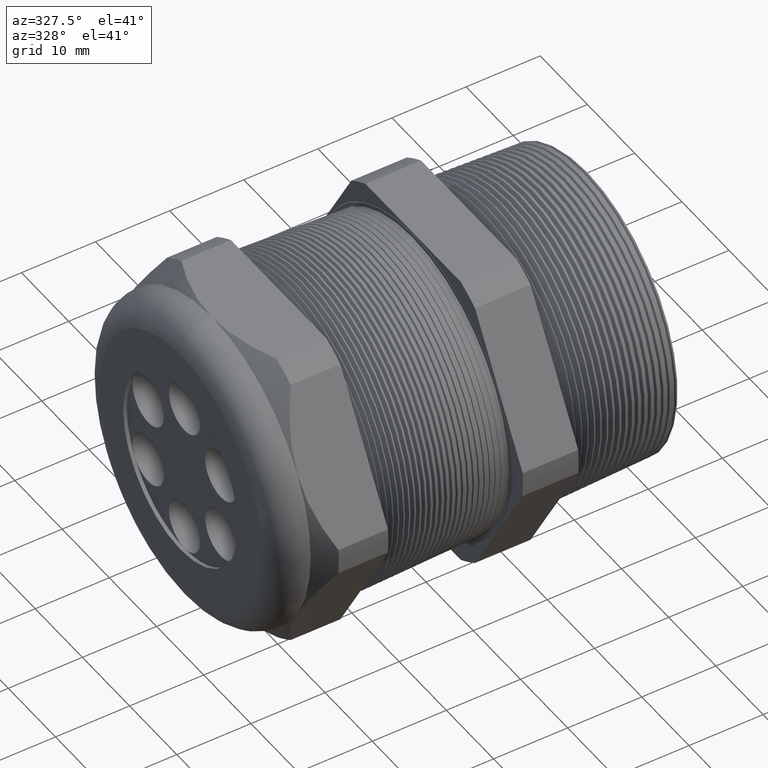
[diagram: clean part render]
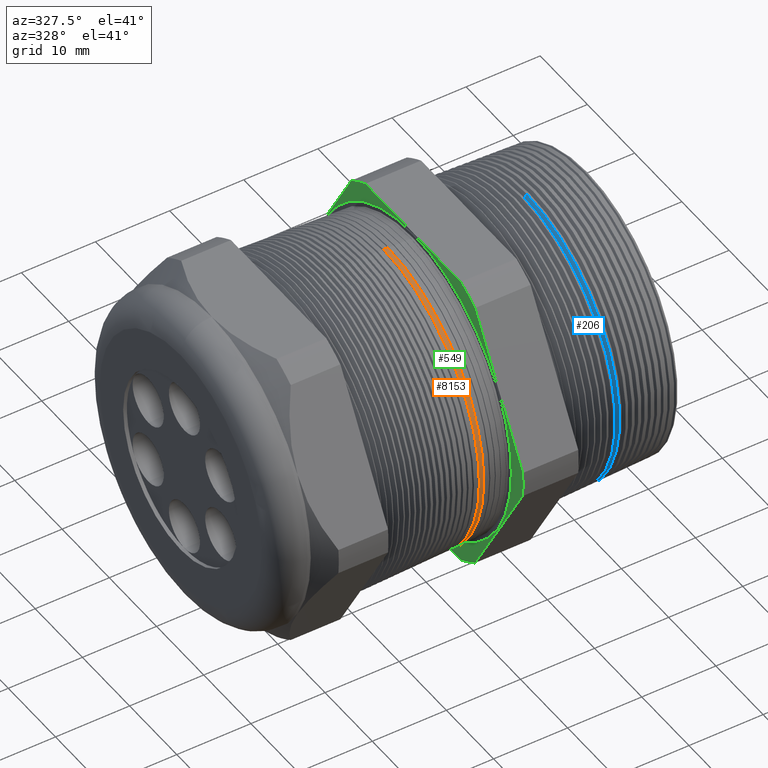
[diagram: same view with three faces highlighted in distinct colors, each labeled with its STEP entity id]
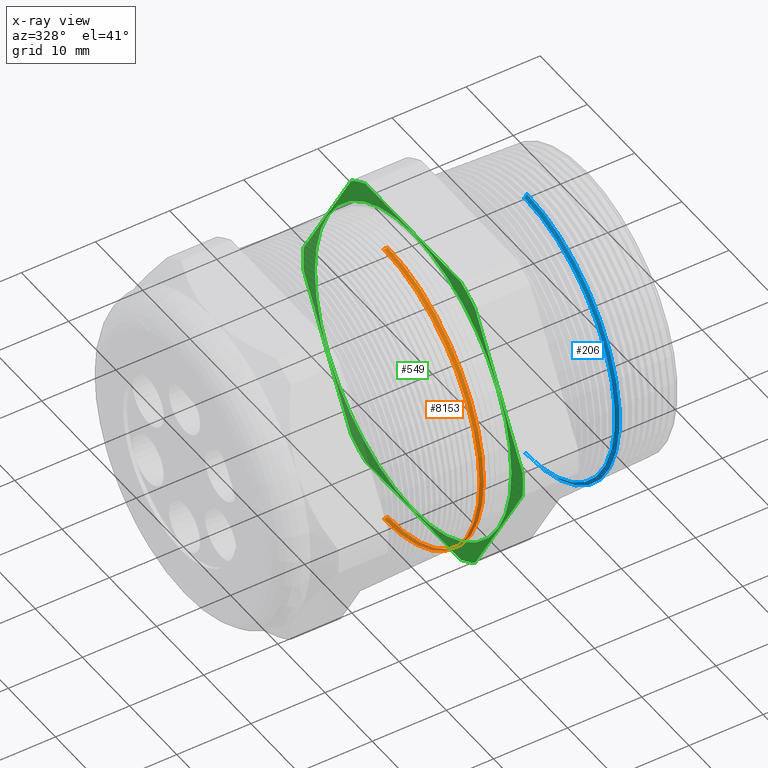
[diagram: x-ray of the same camera — body ghosted, the three highlighted faces saturated]
A machine part, auxiliary view with three faces highlighted in distinct colors.
The next image is the same camera in x-ray (body ghosted, the three faces saturated) — at least one of them is partly hidden behind the body in this view.
Their STEP definitions:

[orange] entity #8153 — the highlighted conical surface has half-angle 2 deg.
#5048 = DIRECTION ( 'NONE',  ( -0.9993908270190959800, 4.273955692856244300E-018, -0.03489949670249364200 ) ) ;
#5049 = VECTOR ( 'NONE', #5048, 39.37007874015748100 ) ;
#5050 = CARTESIAN_POINT ( 'NONE',  ( -0.6052755905511809600, 9.736312814794494100E-017, -0.7950302749799610400 ) ) ;
#5055 = LINE ( 'NONE', #5050, #5049 ) ;
#5058 = DIRECTION ( 'NONE',  ( -0.9993908270190959800, 0.0000000000000000000, 0.03489949670249364200 ) ) ;
#5059 = VECTOR ( 'NONE', #5058, 39.37007874015748100 ) ;
#5060 = CARTESIAN_POINT ( 'NONE',  ( -0.6052755905511809600, 0.0000000000000000000, 0.7950302749799610400 ) ) ;
#5061 = LINE ( 'NONE', #5060, #5059 ) ;
#6092 = CARTESIAN_POINT ( 'NONE',  ( -0.7395311394211149200, 0.0000000000000000000, 0.7997185820550352100 ) ) ;
#6127 = CARTESIAN_POINT ( 'NONE',  ( -0.7395311394211149200, 9.798745611578774700E-017, -0.7997185820550352100 ) ) ;
#6465 = CARTESIAN_POINT ( 'NONE',  ( -0.7629966970108607000, 9.803763205833960100E-017, -0.8005380173826217600 ) ) ;
#6470 = CARTESIAN_POINT ( 'NONE',  ( -0.7629966970108607000, 0.0000000000000000000, 0.8005380173826217600 ) ) ;
#6536 = DIRECTION ( 'NONE',  ( 0.0000000000000000000, 0.0000000000000000000, 1.000000000000000000 ) ) ;
#6537 = DIRECTION ( 'NONE',  ( 1.000000000000000000, 0.0000000000000000000, 0.0000000000000000000 ) ) ;
#6538 = CARTESIAN_POINT ( 'NONE',  ( -0.7395311394211149200, 0.0000000000000000000, 0.0000000000000000000 ) ) ;
#6539 = AXIS2_PLACEMENT_3D ( 'NONE', #6538, #6537, #6536 ) ;
#6540 = CIRCLE ( 'NONE', #6539, 0.7997185820550352100 ) ;
#6561 = DIRECTION ( 'NONE',  ( 0.0000000000000000000, 0.0000000000000000000, 1.000000000000000000 ) ) ;
#6562 = DIRECTION ( 'NONE',  ( -1.000000000000000000, 0.0000000000000000000, 0.0000000000000000000 ) ) ;
#6563 = AXIS2_PLACEMENT_3D ( 'NONE', #6565, #6562, #6561 ) ;
#6564 = CONICAL_SURFACE ( 'NONE', #6563, 0.7950302749799610400, 0.03490658503987925700 ) ;
#6565 = CARTESIAN_POINT ( 'NONE',  ( -0.6052755905511809600, 0.0000000000000000000, 0.0000000000000000000 ) ) ;
#6566 = FACE_OUTER_BOUND ( 'NONE', #8138, .T. ) ;
#6804 = DIRECTION ( 'NONE',  ( 0.0000000000000000000, 0.0000000000000000000, -1.000000000000000000 ) ) ;
#6805 = DIRECTION ( 'NONE',  ( -1.000000000000000000, 0.0000000000000000000, 0.0000000000000000000 ) ) ;
#6806 = CARTESIAN_POINT ( 'NONE',  ( -0.7629966970108607000, 0.0000000000000000000, 0.0000000000000000000 ) ) ;
#6807 = AXIS2_PLACEMENT_3D ( 'NONE', #6806, #6805, #6804 ) ;
#6808 = CIRCLE ( 'NONE', #6807, 0.8005380173826217600 ) ;
#7333 = EDGE_CURVE ( 'NONE', #7911, #8105, #5061, .T. ) ;
#7338 = EDGE_CURVE ( 'NONE', #7924, #8109, #5055, .T. ) ;
#7911 = VERTEX_POINT ( 'NONE', #6092 ) ;
#7924 = VERTEX_POINT ( 'NONE', #6127 ) ;
#8105 = VERTEX_POINT ( 'NONE', #6470 ) ;
#8109 = VERTEX_POINT ( 'NONE', #6465 ) ;
#8133 = EDGE_CURVE ( 'NONE', #7911, #7924, #6540, .T. ) ;
#8134 = ORIENTED_EDGE ( 'NONE', *, *, #8133, .F. ) ;
#8136 = ORIENTED_EDGE ( 'NONE', *, *, #7338, .F. ) ;
#8138 = EDGE_LOOP ( 'NONE', ( #8136, #8134, #8305, #8306 ) ) ;
#8153 = ADVANCED_FACE ( 'NONE', ( #6566 ), #6564, .T. ) ;
#8303 = EDGE_CURVE ( 'NONE', #8109, #8105, #6808, .T. ) ;
#8305 = ORIENTED_EDGE ( 'NONE', *, *, #7333, .T. ) ;
#8306 = ORIENTED_EDGE ( 'NONE', *, *, #8303, .F. ) ;

[blue] entity #206 — the highlighted conical surface has half-angle 58 deg.
#125 = ORIENTED_EDGE ( 'NONE', *, *, #166, .T. ) ;
#126 = ORIENTED_EDGE ( 'NONE', *, *, #713, .T. ) ;
#166 = EDGE_CURVE ( 'NONE', #642, #639, #1899, .T. ) ;
#181 = EDGE_CURVE ( 'NONE', #637, #636, #1929, .T. ) ;
#207 = ORIENTED_EDGE ( 'NONE', *, *, #181, .T. ) ;
#206 = ADVANCED_FACE ( 'NONE', ( #1906 ), #1970, .T. ) ;
#208 = EDGE_LOOP ( 'NONE', ( #209, #207, #126, #125 ) ) ;
#209 = ORIENTED_EDGE ( 'NONE', *, *, #635, .F. ) ;
#635 = EDGE_CURVE ( 'NONE', #637, #639, #2783, .T. ) ;
#636 = VERTEX_POINT ( 'NONE', #2778 ) ;
#637 = VERTEX_POINT ( 'NONE', #2776 ) ;
#639 = VERTEX_POINT ( 'NONE', #2775 ) ;
#642 = VERTEX_POINT ( 'NONE', #2834 ) ;
#713 = EDGE_CURVE ( 'NONE', #636, #642, #2960, .T. ) ;
#1896 = DIRECTION ( 'NONE',  ( 0.0000000000000000000, 0.0000000000000000000, -1.000000000000000000 ) ) ;
#1897 = DIRECTION ( 'NONE',  ( -1.000000000000000000, 0.0000000000000000000, 0.0000000000000000000 ) ) ;
#1898 = AXIS2_PLACEMENT_3D ( 'NONE', #1903, #1897, #1896 ) ;
#1899 = CIRCLE ( 'NONE', #1898, 0.7739410592660150900 ) ;
#1903 = CARTESIAN_POINT ( 'NONE',  ( -0.001359467828458814000, 0.0000000000000000000, 0.0000000000000000000 ) ) ;
#1905 = CARTESIAN_POINT ( 'NONE',  ( -0.01373702801092110300, 0.0000000000000000000, 0.0000000000000000000 ) ) ;
#1906 = FACE_OUTER_BOUND ( 'NONE', #208, .T. ) ;
#1926 = DIRECTION ( 'NONE',  ( 0.0000000000000000000, 0.0000000000000000000, -1.000000000000000000 ) ) ;
#1927 = DIRECTION ( 'NONE',  ( 1.000000000000000000, 0.0000000000000000000, 0.0000000000000000000 ) ) ;
#1928 = AXIS2_PLACEMENT_3D ( 'NONE', #1934, #1927, #1926 ) ;
#1929 = CIRCLE ( 'NONE', #1928, 0.7541328223207396400 ) ;
#1934 = CARTESIAN_POINT ( 'NONE',  ( -0.01373702801092110300, 0.0000000000000000000, 0.0000000000000000000 ) ) ;
#1967 = DIRECTION ( 'NONE',  ( 0.0000000000000000000, 0.0000000000000000000, -1.000000000000000000 ) ) ;
#1968 = DIRECTION ( 'NONE',  ( 1.000000000000000000, 0.0000000000000000000, 0.0000000000000000000 ) ) ;
#1969 = AXIS2_PLACEMENT_3D ( 'NONE', #1905, #1968, #1967 ) ;
#1970 = CONICAL_SURFACE ( 'NONE', #1969, 0.7541328223207396400, 1.012290966156726300 ) ;
#2775 = CARTESIAN_POINT ( 'NONE',  ( -0.001359467828458814000, 0.0000000000000000000, 0.7739410592660150900 ) ) ;
#2776 = CARTESIAN_POINT ( 'NONE',  ( -0.01373702801092110300, 0.0000000000000000000, 0.7541328223207396400 ) ) ;
#2778 = CARTESIAN_POINT ( 'NONE',  ( -0.01373702801092110300, 9.361745374026719000E-017, -0.7541328223207396400 ) ) ;
#2779 = DIRECTION ( 'NONE',  ( 0.5299192642331921300, 1.038559386480983700E-016, 0.8480480961564338400 ) ) ;
#2781 = VECTOR ( 'NONE', #2779, 39.37007874015748100 ) ;
#2782 = CARTESIAN_POINT ( 'NONE',  ( -0.01373702801092110300, 9.235463469870535300E-017, 0.7541328223207396400 ) ) ;
#2783 = LINE ( 'NONE', #2782, #2781 ) ;
#2834 = CARTESIAN_POINT ( 'NONE',  ( -0.001359467828458814000, 9.478044409588372100E-017, -0.7739410592660150900 ) ) ;
#2957 = DIRECTION ( 'NONE',  ( 0.5299192642331921300, 0.0000000000000000000, -0.8480480961564338400 ) ) ;
#2958 = VECTOR ( 'NONE', #2957, 39.37007874015748100 ) ;
#2959 = CARTESIAN_POINT ( 'NONE',  ( -0.01373702801092110300, 0.0000000000000000000, -0.7541328223207396400 ) ) ;
#2960 = LINE ( 'NONE', #2959, #2958 ) ;

[green] entity #549 — the highlighted planar face has unit normal (-1, 0, 0).
#502 = VERTEX_POINT ( 'NONE', #2543 ) ;
#503 = VERTEX_POINT ( 'NONE', #2539 ) ;
#508 = EDGE_CURVE ( 'NONE', #521, #503, #2530, .T. ) ;
#521 = VERTEX_POINT ( 'NONE', #2564 ) ;
#523 = VERTEX_POINT ( 'NONE', #2557 ) ;
#524 = ORIENTED_EDGE ( 'NONE', *, *, #526, .T. ) ;
#525 = ORIENTED_EDGE ( 'NONE', *, *, #508, .T. ) ;
#526 = EDGE_CURVE ( 'NONE', #523, #521, #2556, .T. ) ;
#531 = VERTEX_POINT ( 'NONE', #2552 ) ;
#537 = EDGE_CURVE ( 'NONE', #531, #523, #2546, .T. ) ;
#539 = ORIENTED_EDGE ( 'NONE', *, *, #537, .T. ) ;
#549 = ADVANCED_FACE ( 'NONE', ( #2579, #2578 ), #2585, .T. ) ;
#2526 = DIRECTION ( 'NONE',  ( 0.0000000000000000000, 0.0000000000000000000, 1.000000000000000000 ) ) ;
#2527 = DIRECTION ( 'NONE',  ( -1.000000000000000000, 0.0000000000000000000, 0.0000000000000000000 ) ) ;
#2528 = CARTESIAN_POINT ( 'NONE',  ( -0.6052755905511810800, 0.0000000000000000000, 0.0000000000000000000 ) ) ;
#2529 = AXIS2_PLACEMENT_3D ( 'NONE', #2528, #2527, #2526 ) ;
#2530 = CIRCLE ( 'NONE', #2529, 0.9157500000000000600 ) ;
#2539 = CARTESIAN_POINT ( 'NONE',  ( -0.6052755905511810800, 0.3974582525247150100, -0.8249999999999999600 ) ) ;
#2543 = CARTESIAN_POINT ( 'NONE',  ( -0.6052755905511810800, -0.3974582525247148400, -0.8250000000000000700 ) ) ;
#2544 = CARTESIAN_POINT ( 'NONE',  ( -0.6052755905511810800, 0.0000000000000000000, 0.0000000000000000000 ) ) ;
#2545 = AXIS2_PLACEMENT_3D ( 'NONE', #2544, #2606, #2605 ) ;
#2546 = CIRCLE ( 'NONE', #2545, 0.9157499999999999500 ) ;
#2552 = CARTESIAN_POINT ( 'NONE',  ( -0.6052755905511810800, 0.9132000843845192700, 0.06829105636982647800 ) ) ;
#2553 = DIRECTION ( 'NONE',  ( 0.0000000000000000000, -0.4999999999999998300, -0.8660254037844386000 ) ) ;
#2554 = VECTOR ( 'NONE', #2553, 39.37007874015748900 ) ;
#2555 = CARTESIAN_POINT ( 'NONE',  ( -0.6052755905511809600, 1.126970958122162100, 0.3019709581221616800 ) ) ;
#2556 = LINE ( 'NONE', #2555, #2554 ) ;
#2557 = CARTESIAN_POINT ( 'NONE',  ( -0.6052755905511810800, 0.9132000843845193800, -0.06829105636982670000 ) ) ;
#2564 = CARTESIAN_POINT ( 'NONE',  ( -0.6052755905511809600, 0.5157418318598050400, -0.7567089436301733800 ) ) ;
#2574 = DIRECTION ( 'NONE',  ( 0.0000000000000000000, 0.0000000000000000000, 1.000000000000000000 ) ) ;
#2575 = DIRECTION ( 'NONE',  ( -1.000000000000000000, 0.0000000000000000000, 0.0000000000000000000 ) ) ;
#2576 = CARTESIAN_POINT ( 'NONE',  ( -0.6052755905511809600, 1.649999999999999900, 0.0000000000000000000 ) ) ;
#2577 = AXIS2_PLACEMENT_3D ( 'NONE', #2576, #2575, #2574 ) ;
#2578 = FACE_OUTER_BOUND ( 'NONE', #7430, .T. ) ;
#2579 = FACE_BOUND ( 'NONE', #8464, .T. ) ;
#2585 = PLANE ( 'NONE',  #2577 ) ;
#2605 = DIRECTION ( 'NONE',  ( 0.0000000000000000000, 0.0000000000000000000, 1.000000000000000000 ) ) ;
#2606 = DIRECTION ( 'NONE',  ( -1.000000000000000000, 0.0000000000000000000, 0.0000000000000000000 ) ) ;
#4877 = DIRECTION ( 'NONE',  ( 0.0000000000000000000, 0.0000000000000000000, 1.000000000000000000 ) ) ;
#5293 = CIRCLE ( 'NONE', #5294, 0.8191256059292615400 ) ;
#5294 = AXIS2_PLACEMENT_3D ( 'NONE', #5357, #5356, #5355 ) ;
#5299 = DIRECTION ( 'NONE',  ( 0.0000000000000000000, 0.4999999999999998300, -0.8660254037844386000 ) ) ;
#5300 = VECTOR ( 'NONE', #5299, 39.37007874015748900 ) ;
#5301 = CARTESIAN_POINT ( 'NONE',  ( -0.6052755905511809600, 1.126970958122161900, -0.3019709581221617400 ) ) ;
#5302 = LINE ( 'NONE', #5301, #5300 ) ;
#5303 = CARTESIAN_POINT ( 'NONE',  ( -0.6052755905511810800, 0.5157418318598044900, 0.7567089436301736000 ) ) ;
#5326 = CARTESIAN_POINT ( 'NONE',  ( -0.6052755905511810800, -0.5157418318598044900, 0.7567089436301736000 ) ) ;
#5327 = DIRECTION ( 'NONE',  ( 0.0000000000000000000, 0.0000000000000000000, 1.000000000000000000 ) ) ;
#5328 = DIRECTION ( 'NONE',  ( -1.000000000000000000, 0.0000000000000000000, 0.0000000000000000000 ) ) ;
#5329 = CARTESIAN_POINT ( 'NONE',  ( -0.6052755905511810800, 0.0000000000000000000, 0.0000000000000000000 ) ) ;
#5330 = AXIS2_PLACEMENT_3D ( 'NONE', #5329, #5328, #5327 ) ;
#5331 = CIRCLE ( 'NONE', #5330, 0.9157500000000000600 ) ;
#5340 = CARTESIAN_POINT ( 'NONE',  ( -0.6052755905511809600, 0.0000000000000000000, 0.8191256059292616500 ) ) ;
#5346 = CARTESIAN_POINT ( 'NONE',  ( -0.6052755905511809600, 1.003139551400906500E-016, -0.8191256059292616500 ) ) ;
#5347 = CARTESIAN_POINT ( 'NONE',  ( -0.6052755905511810800, -0.3974582525247157800, 0.8249999999999995100 ) ) ;
#5355 = DIRECTION ( 'NONE',  ( 0.0000000000000000000, 0.0000000000000000000, 1.000000000000000000 ) ) ;
#5356 = DIRECTION ( 'NONE',  ( -1.000000000000000000, 0.0000000000000000000, 0.0000000000000000000 ) ) ;
#5357 = CARTESIAN_POINT ( 'NONE',  ( -0.6052755905511809600, 0.0000000000000000000, 0.0000000000000000000 ) ) ;
#5358 = VECTOR ( 'NONE', #5424, 39.37007874015748900 ) ;
#5359 = CARTESIAN_POINT ( 'NONE',  ( -0.6052755905511809600, -0.3019709581221617400, -1.126970958122162300 ) ) ;
#5360 = LINE ( 'NONE', #5359, #5358 ) ;
#5367 = CARTESIAN_POINT ( 'NONE',  ( -0.6052755905511810800, -0.9132000843845193800, -0.06829105636982593700 ) ) ;
#5385 = DIRECTION ( 'NONE',  ( 0.0000000000000000000, 0.4999999999999998300, 0.8660254037844388200 ) ) ;
#5386 = VECTOR ( 'NONE', #5385, 39.37007874015748100 ) ;
#5387 = CARTESIAN_POINT ( 'NONE',  ( -0.6052755905511809600, -0.3019709581221620100, 1.126970958122161200 ) ) ;
#5388 = LINE ( 'NONE', #5387, #5386 ) ;
#5390 = CARTESIAN_POINT ( 'NONE',  ( -0.6052755905511810800, -0.9132000843845194900, 0.06829105636982570100 ) ) ;
#5391 = DIRECTION ( 'NONE',  ( -1.000000000000000000, 0.0000000000000000000, 0.0000000000000000000 ) ) ;
#5392 = CARTESIAN_POINT ( 'NONE',  ( -0.6052755905511810800, 0.0000000000000000000, 0.0000000000000000000 ) ) ;
#5393 = AXIS2_PLACEMENT_3D ( 'NONE', #5392, #5391, #4877 ) ;
#5394 = CIRCLE ( 'NONE', #5393, 0.9157500000000000600 ) ;
#5405 = CARTESIAN_POINT ( 'NONE',  ( -0.6052755905511810800, -0.5157418318598037100, -0.7567089436301741600 ) ) ;
#5424 = DIRECTION ( 'NONE',  ( 0.0000000000000000000, -0.5000000000000001100, 0.8660254037844384900 ) ) ;
#5433 = DIRECTION ( 'NONE',  ( 0.0000000000000000000, -1.000000000000000000, 0.0000000000000000000 ) ) ;
#5434 = VECTOR ( 'NONE', #5433, 39.37007874015748100 ) ;
#5435 = CARTESIAN_POINT ( 'NONE',  ( -0.6052755905511809600, 1.649999999999999900, -0.8250000000000000700 ) ) ;
#5436 = LINE ( 'NONE', #5435, #5434 ) ;
#5668 = DIRECTION ( 'NONE',  ( 0.0000000000000000000, 0.0000000000000000000, 1.000000000000000000 ) ) ;
#5669 = DIRECTION ( 'NONE',  ( -1.000000000000000000, 0.0000000000000000000, 0.0000000000000000000 ) ) ;
#5670 = CARTESIAN_POINT ( 'NONE',  ( -0.6052755905511810800, 0.0000000000000000000, 0.0000000000000000000 ) ) ;
#5671 = AXIS2_PLACEMENT_3D ( 'NONE', #5670, #5669, #5668 ) ;
#5672 = CIRCLE ( 'NONE', #5671, 0.9157500000000000600 ) ;
#5673 = CARTESIAN_POINT ( 'NONE',  ( -0.6052755905511810800, 0.3974582525247153400, 0.8249999999999998400 ) ) ;
#6603 = DIRECTION ( 'NONE',  ( 0.0000000000000000000, 0.0000000000000000000, 1.000000000000000000 ) ) ;
#6604 = DIRECTION ( 'NONE',  ( -1.000000000000000000, 0.0000000000000000000, 0.0000000000000000000 ) ) ;
#6605 = CARTESIAN_POINT ( 'NONE',  ( -0.6052755905511810800, 0.0000000000000000000, 0.0000000000000000000 ) ) ;
#6606 = AXIS2_PLACEMENT_3D ( 'NONE', #6605, #6604, #6603 ) ;
#6607 = CIRCLE ( 'NONE', #6606, 0.9157500000000000600 ) ;
#6671 = DIRECTION ( 'NONE',  ( 0.0000000000000000000, 1.000000000000000000, 0.0000000000000000000 ) ) ;
#6672 = VECTOR ( 'NONE', #6671, 39.37007874015748100 ) ;
#6673 = CARTESIAN_POINT ( 'NONE',  ( -0.6052755905511809600, 1.649999999999999900, 0.8249999999999998400 ) ) ;
#6674 = LINE ( 'NONE', #6673, #6672 ) ;
#7026 = DIRECTION ( 'NONE',  ( 0.0000000000000000000, 0.0000000000000000000, 1.000000000000000000 ) ) ;
#7027 = DIRECTION ( 'NONE',  ( -1.000000000000000000, 0.0000000000000000000, 0.0000000000000000000 ) ) ;
#7028 = CARTESIAN_POINT ( 'NONE',  ( -0.6052755905511809600, 0.0000000000000000000, 0.0000000000000000000 ) ) ;
#7029 = AXIS2_PLACEMENT_3D ( 'NONE', #7028, #7027, #7026 ) ;
#7030 = CIRCLE ( 'NONE', #7029, 0.8191256059292615400 ) ;
#7430 = EDGE_LOOP ( 'NONE', ( #7485, #539, #524, #525, #7565, #7552, #7526, #7524, #7507, #8188, #8166, #7664 ) ) ;
#7483 = VERTEX_POINT ( 'NONE', #5303 ) ;
#7484 = EDGE_CURVE ( 'NONE', #7483, #531, #5302, .T. ) ;
#7485 = ORIENTED_EDGE ( 'NONE', *, *, #7484, .T. ) ;
#7487 = EDGE_CURVE ( 'NONE', #7493, #7499, #5293, .T. ) ;
#7492 = VERTEX_POINT ( 'NONE', #5347 ) ;
#7493 = VERTEX_POINT ( 'NONE', #5346 ) ;
#7499 = VERTEX_POINT ( 'NONE', #5340 ) ;
#7504 = EDGE_CURVE ( 'NONE', #7521, #7508, #5331, .T. ) ;
#7506 = VERTEX_POINT ( 'NONE', #5326 ) ;
#7507 = ORIENTED_EDGE ( 'NONE', *, *, #7509, .T. ) ;
#7508 = VERTEX_POINT ( 'NONE', #5390 ) ;
#7509 = EDGE_CURVE ( 'NONE', #7508, #7506, #5388, .T. ) ;
#7521 = VERTEX_POINT ( 'NONE', #5367 ) ;
#7523 = EDGE_CURVE ( 'NONE', #7534, #7521, #5360, .T. ) ;
#7524 = ORIENTED_EDGE ( 'NONE', *, *, #7504, .T. ) ;
#7526 = ORIENTED_EDGE ( 'NONE', *, *, #7523, .T. ) ;
#7534 = VERTEX_POINT ( 'NONE', #5405 ) ;
#7538 = EDGE_CURVE ( 'NONE', #502, #7534, #5394, .T. ) ;
#7552 = ORIENTED_EDGE ( 'NONE', *, *, #7538, .T. ) ;
#7553 = EDGE_CURVE ( 'NONE', #503, #502, #5436, .T. ) ;
#7565 = ORIENTED_EDGE ( 'NONE', *, *, #7553, .T. ) ;
#7663 = VERTEX_POINT ( 'NONE', #5673 ) ;
#7664 = ORIENTED_EDGE ( 'NONE', *, *, #7667, .T. ) ;
#7667 = EDGE_CURVE ( 'NONE', #7663, #7483, #5672, .T. ) ;
#8166 = ORIENTED_EDGE ( 'NONE', *, *, #8204, .T. ) ;
#8168 = EDGE_CURVE ( 'NONE', #7506, #7492, #6607, .T. ) ;
#8188 = ORIENTED_EDGE ( 'NONE', *, *, #8168, .T. ) ;
#8204 = EDGE_CURVE ( 'NONE', #7492, #7663, #6674, .T. ) ;
#8447 = ORIENTED_EDGE ( 'NONE', *, *, #7487, .F. ) ;
#8464 = EDGE_LOOP ( 'NONE', ( #8468, #8447 ) ) ;
#8466 = EDGE_CURVE ( 'NONE', #7499, #7493, #7030, .T. ) ;
#8468 = ORIENTED_EDGE ( 'NONE', *, *, #8466, .F. ) ;